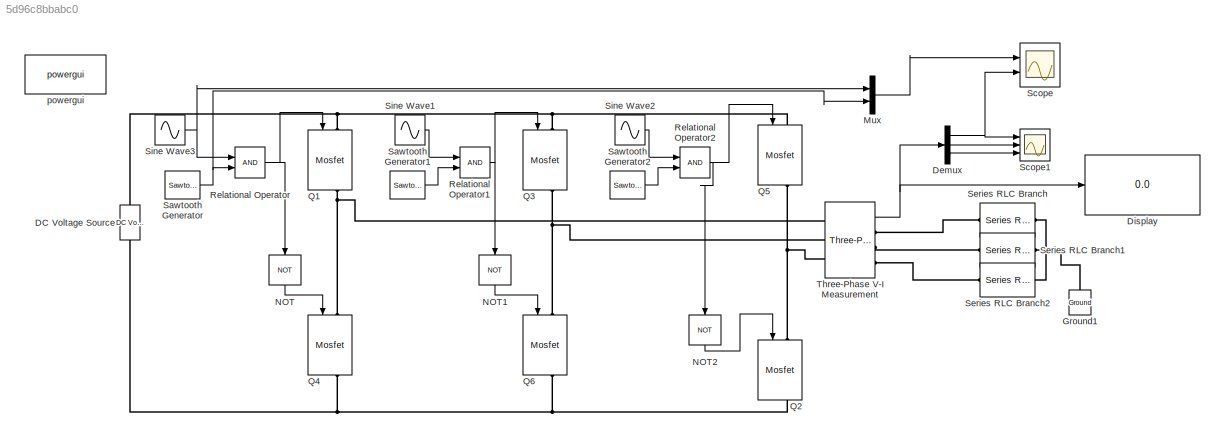
MODEL slx_5d96c8bbabc0
KIND model
CONFIG AbsTol = auto
CONFIG EnableMultiTasking = off
CONFIG FixedStep = auto
CONFIG MaxStep = 1e-4
CONFIG MinStep = auto
CONFIG RelTol = 1e-3
CONFIG SampleTimeConstraint = Unconstrained
CONFIG SolverName = VariableStepAuto
CONFIG StartTime = 0.0
CONFIG StopTime = 0.1
BLOCK [Reference] DC Voltage Source  REF=spsDCVoltageSourceLib/DC Voltage Source
  Ports = [0, 0, 0, 0, 0, 1, 1]
  SourceBlock = spsDCVoltageSourceLib/DC Voltage Source
  SourceProductBaseCode = PS
  SourceType = DC Voltage Source
BLOCK [Demux] Demux
  Outputs = 3
  Ports = [1, 3]
BLOCK [Display] Display
  Decimation = 1
  Ports = [1]
BLOCK [Reference] Ground1  REF=spsGroundLib/Ground
  NameLocation = right
  Ports = [0, 0, 0, 0, 0, 1]
  SourceBlock = spsGroundLib/Ground
  SourceProductBaseCode = PS
  SourceType = Ground
BLOCK [Mux] Mux
  DisplayOption = bar
  Inputs = 2
  Ports = [2, 1]
BLOCK [Logic] NOT
  AllPortsSameDT = off
  NameLocation = left
  Operator = NOT
  OutDataTypeStr = boolean
  Ports = [1, 1]
BLOCK [Logic] NOT1
  AllPortsSameDT = off
  NameLocation = left
  Operator = NOT
  OutDataTypeStr = boolean
  Ports = [1, 1]
BLOCK [Logic] NOT2
  AllPortsSameDT = off
  NameLocation = left
  Operator = NOT
  OutDataTypeStr = boolean
  Ports = [1, 1]
BLOCK [Reference] Q1  REF=spsMosfetLib/Mosfet
  NameLocation = left
  Ports = [1, 1, 0, 0, 0, 1, 1]
  SourceBlock = spsMosfetLib/Mosfet
  SourceProductBaseCode = PS
  SourceType = Mosfet
BLOCK [Reference] Q2  REF=spsMosfetLib/Mosfet
  NameLocation = left
  Ports = [1, 1, 0, 0, 0, 1, 1]
  SourceBlock = spsMosfetLib/Mosfet
  SourceProductBaseCode = PS
  SourceType = Mosfet
BLOCK [Reference] Q3  REF=spsMosfetLib/Mosfet
  NameLocation = left
  Ports = [1, 1, 0, 0, 0, 1, 1]
  SourceBlock = spsMosfetLib/Mosfet
  SourceProductBaseCode = PS
  SourceType = Mosfet
BLOCK [Reference] Q4  REF=spsMosfetLib/Mosfet
  NameLocation = left
  Ports = [1, 1, 0, 0, 0, 1, 1]
  SourceBlock = spsMosfetLib/Mosfet
  SourceProductBaseCode = PS
  SourceType = Mosfet
BLOCK [Reference] Q5  REF=spsMosfetLib/Mosfet
  NameLocation = left
  Ports = [1, 1, 0, 0, 0, 1, 1]
  SourceBlock = spsMosfetLib/Mosfet
  SourceProductBaseCode = PS
  SourceType = Mosfet
BLOCK [Reference] Q6  REF=spsMosfetLib/Mosfet
  NameLocation = left
  Ports = [1, 1, 0, 0, 0, 1, 1]
  SourceBlock = spsMosfetLib/Mosfet
  SourceProductBaseCode = PS
  SourceType = Mosfet
BLOCK [RelationalOperator] Relational Operator
  InputSameDT = off
  OutDataTypeStr = boolean
  Ports = [2, 1]
  RndMeth = Simplest
BLOCK [RelationalOperator] Relational Operator1
  InputSameDT = off
  OutDataTypeStr = boolean
  Ports = [2, 1]
  RndMeth = Simplest
BLOCK [RelationalOperator] Relational Operator2
  InputSameDT = off
  OutDataTypeStr = boolean
  Ports = [2, 1]
  RndMeth = Simplest
BLOCK [Reference] Sawtooth Generator  REF=spsSawtoothGeneratorLib/Sawtooth
Generator
  Ports = [0, 1]
  SourceBlock = spsSawtoothGeneratorLib/Sawtooth\nGenerator
  SourceProductBaseCode = PS
  SourceType = Sawtooth Generator
BLOCK [Reference] Sawtooth Generator1  REF=spsSawtoothGeneratorLib/Sawtooth
Generator
  Ports = [0, 1]
  SourceBlock = spsSawtoothGeneratorLib/Sawtooth\nGenerator
  SourceProductBaseCode = PS
  SourceType = Sawtooth Generator
BLOCK [Reference] Sawtooth Generator2  REF=spsSawtoothGeneratorLib/Sawtooth
Generator
  Ports = [0, 1]
  SourceBlock = spsSawtoothGeneratorLib/Sawtooth\nGenerator
  SourceProductBaseCode = PS
  SourceType = Sawtooth Generator
BLOCK [Scope] Scope
  Floating = off
  NumInputPorts = 2
  Ports = [2]
  ScopeSpecificationString = Simulink.scopes.TimeScopeBlockCfg('CurrentConfiguration', extmgr.ConfigurationSet(extmgr.Configuration('Core','General UI',true),extmgr.Configuration('Core','Source UI',true),extmgr.Configuration('Sources','WiredSimulink',true),extmgr.Configuration('Visuals','Time Domain',true,'SerializedDisplays',{struct('MinYLimReal','-1.25','MaxYLimReal','1.25','YLabelReal','','MinYLimMag','0.00000','MaxYLimMag...<+1966ch>
BLOCK [Scope] Scope1
  Floating = off
  NumInputPorts = 3
  Ports = [3]
  ScopeSpecificationString = Simulink.scopes.TimeScopeBlockCfg('CurrentConfiguration', extmgr.ConfigurationSet(extmgr.Configuration('Core','General UI',true),extmgr.Configuration('Core','Source UI',true),extmgr.Configuration('Sources','WiredSimulink',true,'DataLoggingVariableName','ScopeData1'),extmgr.Configuration('Visuals','Time Domain',true,'SerializedDisplays',{struct('MinYLimReal','-82.50809','MaxYLimReal','82.50809','YL...<+2708ch>
BLOCK [Reference] Series RLC Branch  REF=spsSeriesRLCBranchLib/Series RLC Branch
  Ports = [0, 0, 0, 0, 0, 1, 1]
  SourceBlock = spsSeriesRLCBranchLib/Series RLC Branch
  SourceProductBaseCode = PS
  SourceType = Series RLC Branch
BLOCK [Reference] Series RLC Branch1  REF=spsSeriesRLCBranchLib/Series RLC Branch
  Ports = [0, 0, 0, 0, 0, 1, 1]
  SourceBlock = spsSeriesRLCBranchLib/Series RLC Branch
  SourceProductBaseCode = PS
  SourceType = Series RLC Branch
BLOCK [Reference] Series RLC Branch2  REF=spsSeriesRLCBranchLib/Series RLC Branch
  Ports = [0, 0, 0, 0, 0, 1, 1]
  SourceBlock = spsSeriesRLCBranchLib/Series RLC Branch
  SourceProductBaseCode = PS
  SourceType = Series RLC Branch
BLOCK [Sin] Sine Wave1
  Amplitude = 0.9
  Frequency = 2*pi*50
  Phase = 120*(pi/180)
  Ports = [0, 1]
  SampleTime = 0
BLOCK [Sin] Sine Wave2
  Amplitude = 0.9
  Frequency = 2*pi*50
  Phase = 240*(pi/180)
  Ports = [0, 1]
  SampleTime = 0
BLOCK [Sin] Sine Wave3
  Amplitude = 0.9
  Frequency = 2*pi*50
  Ports = [0, 1]
  SampleTime = 0
BLOCK [Reference] Three-Phase V-I Measurement  REF=spsThreePhaseVIMeasurementLib/Three-Phase
V-I Measurement
  Ports = [0, 1, 0, 0, 0, 3, 3]
  SourceBlock = spsThreePhaseVIMeasurementLib/Three-Phase\nV-I Measurement
  SourceProductBaseCode = PS
  SourceType = Three-Phase VI Measurement
BLOCK [Reference] powergui  REF=spspowerguiLib/powergui
  Ports = []
  Priority = 1
  SourceBlock = spspowerguiLib/powergui
  SourceProductBaseCode = PS
  SourceType = PSB option menu block
NET Demux:1 -> Scope1:1, Scope:2
LINE Demux:2 -> Scope1:2
LINE Demux:3 -> Scope1:3
LINE Mux:1 -> Scope:1
LINE NOT1:1 -> Q6:1
LINE NOT2:1 -> Q2:1
LINE NOT:1 -> Q4:1
NET Relational Operator1:1 -> NOT1:1, Q3:1
NET Relational Operator2:1 -> NOT2:1, Q5:1
NET Relational Operator:1 -> NOT:1, Q1:1
LINE Sawtooth Generator1:1 -> Relational Operator1:2
LINE Sawtooth Generator2:1 -> Relational Operator2:2
NET Sawtooth Generator:1 -> Mux:2, Relational Operator:2
LINE Sine Wave1:1 -> Relational Operator1:1
LINE Sine Wave2:1 -> Relational Operator2:1
NET Sine Wave3:1 -> Mux:1, Relational Operator:1
NET Three-Phase V-I Measurement:1 -> Demux:1, Display:1
PNET net1: DC Voltage Source:LConn1 -- Q2:RConn1 -- Q4:RConn1 -- Q6:RConn1
PNET net2: DC Voltage Source:RConn1 -- Q1:LConn1 -- Q3:LConn1 -- Q5:LConn1
PNET net3: Ground1:LConn1 -- Series RLC Branch1:RConn1 -- Series RLC Branch2:RConn1 -- Series RLC Branch:RConn1
PNET net4: Q1:RConn1 -- Q4:LConn1 -- Three-Phase V-I Measurement:LConn1
PNET net5: Q2:LConn1 -- Q5:RConn1 -- Three-Phase V-I Measurement:LConn3
PNET net6: Q3:RConn1 -- Q6:LConn1 -- Three-Phase V-I Measurement:LConn2
PLINE Series RLC Branch1:LConn1 -- Three-Phase V-I Measurement:RConn2
PLINE Series RLC Branch2:LConn1 -- Three-Phase V-I Measurement:RConn3
PLINE Series RLC Branch:LConn1 -- Three-Phase V-I Measurement:RConn1
note: NET lines group one-source signal fan-out (src -> all destinations, sorted); 1:1 wires keep LINE; PNET lines group multi-terminal physical nets as a canonical sorted terminal list (undirected conserving connections); 2-terminal nets keep the pairwise PLINE form
